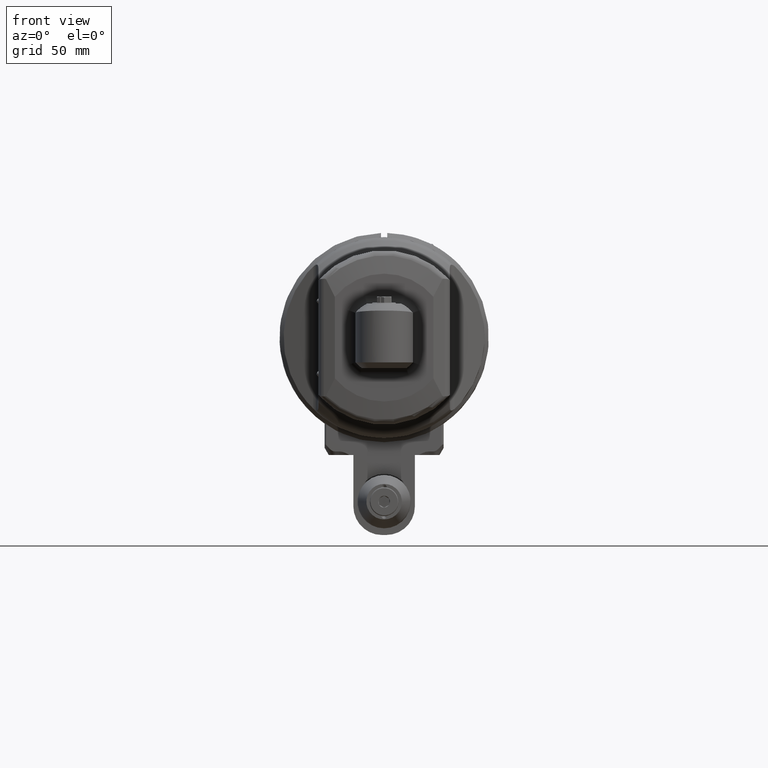
[diagram: clean part render]
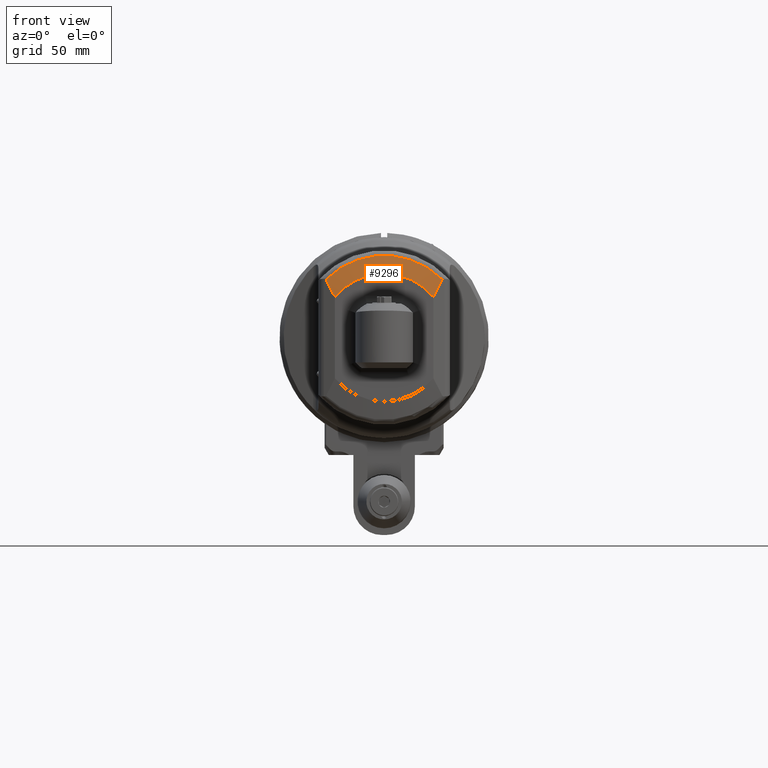
[diagram: same view with one face highlighted and labeled with its STEP entity id]
A machine part, front view. The second image highlights one B-rep face of the part: STEP entity #9296.
In plain terms, the highlighted conical surface has half-angle 80 deg.
Its self-contained STEP definition (entity closure, byte-faithful):
#292=(
BOUNDED_CURVE()
B_SPLINE_CURVE(2,(#58053,#58054,#58055),.UNSPECIFIED.,.F.,.F.)
B_SPLINE_CURVE_WITH_KNOTS((3,3),(0.855072884278293,1.81420301368066),
 .UNSPECIFIED.)
CURVE()
GEOMETRIC_REPRESENTATION_ITEM()
RATIONAL_B_SPLINE_CURVE((1.04043338587086,1.05088766750483,1.03392177647826))
REPRESENTATION_ITEM('')
);
#295=(
BOUNDED_CURVE()
B_SPLINE_CURVE(2,(#58090,#58091,#58092),.UNSPECIFIED.,.F.,.F.)
B_SPLINE_CURVE_WITH_KNOTS((3,3),(0.627303320721791,1.58643345012473),
 .UNSPECIFIED.)
CURVE()
GEOMETRIC_REPRESENTATION_ITEM()
RATIONAL_B_SPLINE_CURVE((1.03392177647831,1.05088766750521,1.04043338587123))
REPRESENTATION_ITEM('')
);
#650=CONICAL_SURFACE('',#10326,35.58919044688,1.39626340159546);
#1089=FACE_OUTER_BOUND('',#1681,.T.);
#1681=EDGE_LOOP('',(#8191,#8192,#8193,#8194));
#2154=CIRCLE('',#10327,40.020944533);
#2155=CIRCLE('',#10328,31.15743636076);
#4433=VERTEX_POINT('',#58043);
#4434=VERTEX_POINT('',#58052);
#4439=VERTEX_POINT('',#58088);
#4440=VERTEX_POINT('',#58089);
#5713=EDGE_CURVE('',#4434,#4433,#292,.T.);
#5721=EDGE_CURVE('',#4439,#4440,#295,.T.);
#5724=EDGE_CURVE('',#4439,#4433,#2154,.T.);
#5725=EDGE_CURVE('',#4434,#4440,#2155,.T.);
#8191=ORIENTED_EDGE('',*,*,#5724,.F.);
#8192=ORIENTED_EDGE('',*,*,#5721,.T.);
#8193=ORIENTED_EDGE('',*,*,#5725,.F.);
#8194=ORIENTED_EDGE('',*,*,#5713,.T.);
#9296=ADVANCED_FACE('',(#1089),#650,.T.);
#10326=AXIS2_PLACEMENT_3D('',#58102,#12604,#12605);
#10327=AXIS2_PLACEMENT_3D('',#58103,#12606,#12607);
#10328=AXIS2_PLACEMENT_3D('',#58104,#12608,#12609);
#12604=DIRECTION('center_axis',(-1.,0.,0.));
#12605=DIRECTION('ref_axis',(0.,-1.,-3.45623869943264E-13));
#12606=DIRECTION('center_axis',(-1.,0.,0.));
#12607=DIRECTION('ref_axis',(0.,-1.,0.));
#12608=DIRECTION('center_axis',(1.,0.,0.));
#12609=DIRECTION('ref_axis',(0.,-1.,0.));
#58043=CARTESIAN_POINT('',(79.43712436551,-28.29410407303,28.30405758926));
#58052=CARTESIAN_POINT('',(81.,-19.85702055244,24.01009319755));
#58053=CARTESIAN_POINT('Ctrl Pts',(80.9999999999965,-19.8570205524341,24.0100931975606));
#58054=CARTESIAN_POINT('Ctrl Pts',(80.3554864224549,-23.4512399589999,25.7808792350844));
#58055=CARTESIAN_POINT('Ctrl Pts',(79.4371243655049,-28.2941040730194,28.3040575892808));
#58088=CARTESIAN_POINT('',(79.43712436551,-28.29410407304,-28.30405758928));
#58089=CARTESIAN_POINT('',(81.,-19.85702055244,-24.01009319755));
#58090=CARTESIAN_POINT('Ctrl Pts',(79.4371243655008,-28.2941040730247,-28.3040575893085));
#58091=CARTESIAN_POINT('Ctrl Pts',(80.3554864224526,-23.4512399589946,-25.780879235107));
#58092=CARTESIAN_POINT('Ctrl Pts',(80.9999999999948,-19.8570205524235,-24.0100931975815));
#58102=CARTESIAN_POINT('Origin',(80.21856218275,0.,0.));
#58103=CARTESIAN_POINT('Origin',(79.43712436551,0.,0.));
#58104=CARTESIAN_POINT('Origin',(81.,0.,0.));